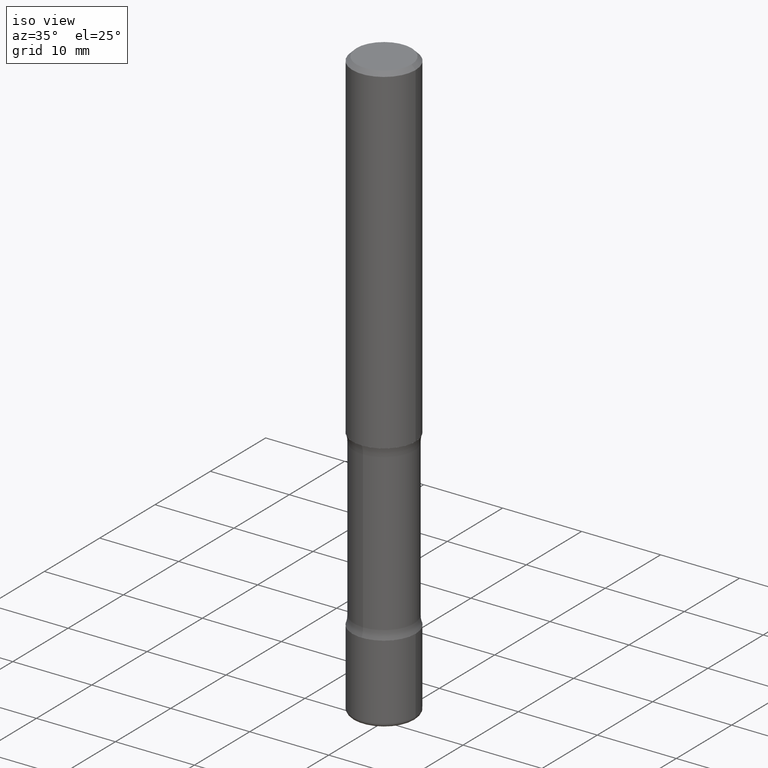
[diagram: clean part render]
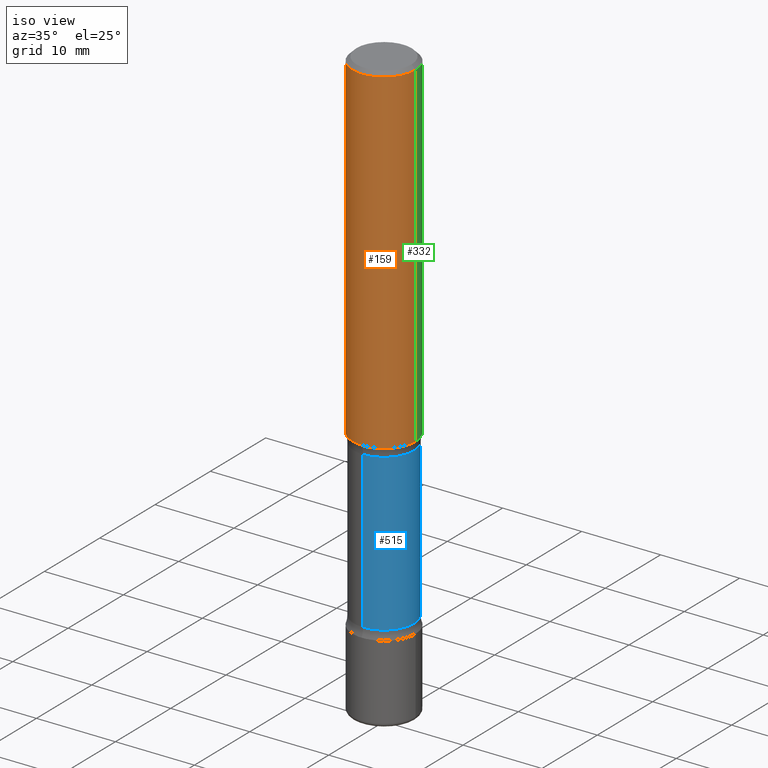
[diagram: same view with three faces highlighted in distinct colors, each labeled with its STEP entity id]
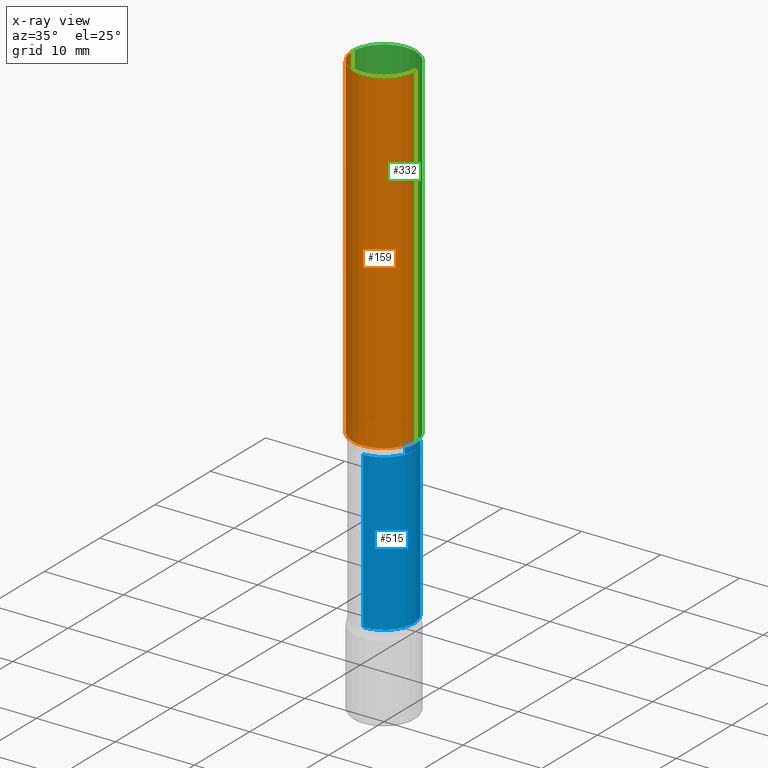
[diagram: x-ray of the same camera — body ghosted, the three highlighted faces saturated]
A machine part, iso view with three faces highlighted in distinct colors.
The next image is the same camera in x-ray (body ghosted, the three faces saturated) — at least one of them is partly hidden behind the body in this view.
Their STEP definitions:

[orange] entity #159 — the highlighted cylindrical surface (partial cylindrical patch) has radius 4.0005 mm, axis along (-0, 0, 1).
#5 = EDGE_CURVE ( 'NONE', #554, #484, #64, .T. ) ;
#7 = VERTEX_POINT ( 'NONE', #22 ) ;
#22 = CARTESIAN_POINT ( 'NONE',  ( -0.1575000000000001676, -1.871348957896993578E-15, -1.692999999999999616 ) ) ;
#27 = CARTESIAN_POINT ( 'NONE',  ( -0.1575000000000000844, 1.119104808822158392E-15, -7.747322767151481189E-30 ) ) ;
#30 = CARTESIAN_POINT ( 'NONE',  ( 0.000000000000000000, 0.000000000000000000, 0.000000000000000000 ) ) ;
#62 = CARTESIAN_POINT ( 'NONE',  ( 0.1575000000000000844, -1.099816621735587677E-15, 7.679978421878603638E-30 ) ) ;
#64 = LINE ( 'NONE', #62, #121 ) ;
#69 = CARTESIAN_POINT ( 'NONE',  ( 0.1575000000000001676, -7.010894528397032856E-15, -1.692999999999999616 ) ) ;
#70 = DIRECTION ( 'NONE',  ( 1.000000000000000000, -6.982962677686265922E-15, 0.000000000000000000 ) ) ;
#105 = CYLINDRICAL_SURFACE ( 'NONE', #418, 0.1575000000000000844 ) ;
#121 = VECTOR ( 'NONE', #176, 39.37007874015748143 ) ;
#146 = ORIENTED_EDGE ( 'NONE', *, *, #227, .T. ) ;
#152 = DIRECTION ( 'NONE',  ( 1.000000000000000000, -6.982962677686267499E-15, 4.876176775795936353E-29 ) ) ;
#159 = ADVANCED_FACE ( 'NONE', ( #421 ), #105, .T. ) ;
#176 = DIRECTION ( 'NONE',  ( -2.445468806185136877E-29, 3.491481338843145188E-15, 1.000000000000000000 ) ) ;
#185 = EDGE_CURVE ( 'NONE', #7, #302, #250, .T. ) ;
#227 = EDGE_CURVE ( 'NONE', #7, #554, #446, .T. ) ;
#241 = CIRCLE ( 'NONE', #552, 0.1575000000000000011 ) ;
#250 = LINE ( 'NONE', #27, #408 ) ;
#300 = AXIS2_PLACEMENT_3D ( 'NONE', #308, #438, #490 ) ;
#302 = VERTEX_POINT ( 'NONE', #527 ) ;
#308 = CARTESIAN_POINT ( 'NONE',  ( 4.140178688871434900E-29, -5.911077906661444587E-15, -1.692999999999999616 ) ) ;
#316 = DIRECTION ( 'NONE',  ( -2.445468806185136597E-29, 3.491481338843145583E-15, 1.000000000000000000 ) ) ;
#356 = EDGE_LOOP ( 'NONE', ( #411, #146, #439, #452 ) ) ;
#384 = CARTESIAN_POINT ( 'NONE',  ( 0.1575000000000000011, -1.150358061425879275E-15, -0.02000000000000003511 ) ) ;
#408 = VECTOR ( 'NONE', #517, 39.37007874015748143 ) ;
#411 = ORIENTED_EDGE ( 'NONE', *, *, #185, .F. ) ;
#417 = EDGE_CURVE ( 'NONE', #302, #484, #241, .T. ) ;
#418 = AXIS2_PLACEMENT_3D ( 'NONE', #30, #551, #152 ) ;
#421 = FACE_OUTER_BOUND ( 'NONE', #356, .T. ) ;
#438 = DIRECTION ( 'NONE',  ( -2.445468806185136597E-29, 3.491481338843145583E-15, 1.000000000000000000 ) ) ;
#439 = ORIENTED_EDGE ( 'NONE', *, *, #5, .T. ) ;
#446 = CIRCLE ( 'NONE', #300, 0.1575000000000001676 ) ;
#452 = ORIENTED_EDGE ( 'NONE', *, *, #417, .F. ) ;
#484 = VERTEX_POINT ( 'NONE', #384 ) ;
#490 = DIRECTION ( 'NONE',  ( 1.000000000000000000, -6.982962677686267499E-15, 0.000000000000000000 ) ) ;
#517 = DIRECTION ( 'NONE',  ( -2.445468806185136877E-29, 3.491481338843145188E-15, 1.000000000000000000 ) ) ;
#527 = CARTESIAN_POINT ( 'NONE',  ( -0.1575000000000000011, 1.029986994958723985E-15, -0.02000000000000003511 ) ) ;
#539 = CARTESIAN_POINT ( 'NONE',  ( 4.890937612370281041E-31, -6.982962677686302702E-17, -0.02000000000000003511 ) ) ;
#551 = DIRECTION ( 'NONE',  ( -2.445468806185136597E-29, 3.491481338843145583E-15, 1.000000000000000000 ) ) ;
#552 = AXIS2_PLACEMENT_3D ( 'NONE', #539, #316, #70 ) ;
#554 = VERTEX_POINT ( 'NONE', #69 ) ;

[blue] entity #515 — the highlighted cylindrical surface (partial cylindrical patch) has radius 3.7973 mm, axis along (0, -0, -1).
#13 = CARTESIAN_POINT ( 'NONE',  ( 4.702483345758239850E-29, -5.413541035302621061E-15, -1.737000000000000099 ) ) ;
#14 = CARTESIAN_POINT ( 'NONE',  ( 6.174935022236070014E-29, -8.746573565571573705E-15, -2.515099999999998559 ) ) ;
#17 = AXIS2_PLACEMENT_3D ( 'NONE', #14, #269, #496 ) ;
#25 = CIRCLE ( 'NONE', #17, 0.1494999999999999940 ) ;
#32 = LINE ( 'NONE', #379, #36 ) ;
#36 = VECTOR ( 'NONE', #278, 39.37007874015748143 ) ;
#41 = FACE_OUTER_BOUND ( 'NONE', #296, .T. ) ;
#53 = CARTESIAN_POINT ( 'NONE',  ( 1.043952920314158531E-15, 0.1494999999999912510, -2.515099999999999003 ) ) ;
#107 = EDGE_CURVE ( 'NONE', #457, #253, #25, .T. ) ;
#114 = EDGE_CURVE ( 'NONE', #162, #457, #406, .T. ) ;
#162 = VERTEX_POINT ( 'NONE', #202 ) ;
#202 = CARTESIAN_POINT ( 'NONE',  ( 1.043952920314138809E-15, 0.1494999999999938878, -1.737000000000000544 ) ) ;
#207 = DIRECTION ( 'NONE',  ( 6.982962677686265133E-15, 1.000000000000000000, -3.654646145370260778E-15 ) ) ;
#208 = VECTOR ( 'NONE', #538, 39.37007874015748143 ) ;
#213 = VERTEX_POINT ( 'NONE', #256 ) ;
#218 = CARTESIAN_POINT ( 'NONE',  ( 7.003224572158122372E-29, -1.062148468046519830E-14, -2.952799999999999869 ) ) ;
#221 = CIRCLE ( 'NONE', #502, 0.1494999999999993001 ) ;
#253 = VERTEX_POINT ( 'NONE', #532 ) ;
#256 = CARTESIAN_POINT ( 'NONE',  ( -1.053086442657879041E-15, -0.1495000000000047125, -1.736999999999999433 ) ) ;
#260 = CYLINDRICAL_SURFACE ( 'NONE', #434, 0.1494999999999996332 ) ;
#267 = ORIENTED_EDGE ( 'NONE', *, *, #357, .T. ) ;
#269 = DIRECTION ( 'NONE',  ( 1.892368174370687992E-29, -4.283552924134379994E-15, -1.000000000000000000 ) ) ;
#278 = DIRECTION ( 'NONE',  ( 1.892368174370687992E-29, -4.283552924134379994E-15, -1.000000000000000000 ) ) ;
#291 = ORIENTED_EDGE ( 'NONE', *, *, #114, .F. ) ;
#296 = EDGE_LOOP ( 'NONE', ( #267, #368, #444, #291 ) ) ;
#297 = DIRECTION ( 'NONE',  ( 1.892368174370687992E-29, -4.283552924134379994E-15, -1.000000000000000000 ) ) ;
#357 = EDGE_CURVE ( 'NONE', #162, #213, #221, .T. ) ;
#363 = DIRECTION ( 'NONE',  ( 1.892368174370687992E-29, -4.283552924134379994E-15, -1.000000000000000000 ) ) ;
#368 = ORIENTED_EDGE ( 'NONE', *, *, #553, .T. ) ;
#379 = CARTESIAN_POINT ( 'NONE',  ( -1.025644450666771294E-15, -0.1495000000000102358, -2.952799999999998981 ) ) ;
#406 = LINE ( 'NONE', #415, #208 ) ;
#415 = CARTESIAN_POINT ( 'NONE',  ( 1.043952920314164053E-15, 0.1494999999999890028, -2.952800000000000313 ) ) ;
#434 = AXIS2_PLACEMENT_3D ( 'NONE', #218, #297, #207 ) ;
#444 = ORIENTED_EDGE ( 'NONE', *, *, #107, .F. ) ;
#457 = VERTEX_POINT ( 'NONE', #53 ) ;
#479 = DIRECTION ( 'NONE',  ( 6.982962677686264344E-15, 1.000000000000000000, -3.654646145370268667E-15 ) ) ;
#496 = DIRECTION ( 'NONE',  ( 6.982962677686265133E-15, 1.000000000000000000, -3.654646145370252101E-15 ) ) ;
#502 = AXIS2_PLACEMENT_3D ( 'NONE', #13, #363, #479 ) ;
#515 = ADVANCED_FACE ( 'NONE', ( #41 ), #260, .T. ) ;
#532 = CARTESIAN_POINT ( 'NONE',  ( -1.053086442657868983E-15, -0.1495000000000087370, -2.515099999999998115 ) ) ;
#538 = DIRECTION ( 'NONE',  ( 1.892368174370687992E-29, -4.283552924134379994E-15, -1.000000000000000000 ) ) ;
#553 = EDGE_CURVE ( 'NONE', #213, #253, #32, .T. ) ;

[green] entity #332 — the highlighted cylindrical surface (partial cylindrical patch) has radius 4.0005 mm, axis along (-0, 0, 1).
#5 = EDGE_CURVE ( 'NONE', #554, #484, #64, .T. ) ;
#7 = VERTEX_POINT ( 'NONE', #22 ) ;
#22 = CARTESIAN_POINT ( 'NONE',  ( -0.1575000000000001676, -1.871348957896993578E-15, -1.692999999999999616 ) ) ;
#27 = CARTESIAN_POINT ( 'NONE',  ( -0.1575000000000000844, 1.119104808822158392E-15, -7.747322767151481189E-30 ) ) ;
#46 = EDGE_CURVE ( 'NONE', #484, #302, #325, .T. ) ;
#54 = AXIS2_PLACEMENT_3D ( 'NONE', #211, #443, #123 ) ;
#59 = CARTESIAN_POINT ( 'NONE',  ( 4.890937612370281041E-31, -6.982962677686302702E-17, -0.02000000000000003511 ) ) ;
#62 = CARTESIAN_POINT ( 'NONE',  ( 0.1575000000000000844, -1.099816621735587677E-15, 7.679978421878603638E-30 ) ) ;
#63 = ORIENTED_EDGE ( 'NONE', *, *, #83, .T. ) ;
#64 = LINE ( 'NONE', #62, #121 ) ;
#69 = CARTESIAN_POINT ( 'NONE',  ( 0.1575000000000001676, -7.010894528397032856E-15, -1.692999999999999616 ) ) ;
#83 = EDGE_CURVE ( 'NONE', #554, #7, #501, .T. ) ;
#89 = FACE_OUTER_BOUND ( 'NONE', #116, .T. ) ;
#99 = DIRECTION ( 'NONE',  ( -2.445468806185136597E-29, 3.491481338843145583E-15, 1.000000000000000000 ) ) ;
#116 = EDGE_LOOP ( 'NONE', ( #63, #435, #407, #311 ) ) ;
#121 = VECTOR ( 'NONE', #176, 39.37007874015748143 ) ;
#123 = DIRECTION ( 'NONE',  ( 1.000000000000000000, -6.982962677686267499E-15, 4.876176775795936353E-29 ) ) ;
#176 = DIRECTION ( 'NONE',  ( -2.445468806185136877E-29, 3.491481338843145188E-15, 1.000000000000000000 ) ) ;
#179 = DIRECTION ( 'NONE',  ( -2.445468806185136597E-29, 3.491481338843145583E-15, 1.000000000000000000 ) ) ;
#185 = EDGE_CURVE ( 'NONE', #7, #302, #250, .T. ) ;
#188 = AXIS2_PLACEMENT_3D ( 'NONE', #59, #179, #231 ) ;
#211 = CARTESIAN_POINT ( 'NONE',  ( 0.000000000000000000, 0.000000000000000000, 0.000000000000000000 ) ) ;
#231 = DIRECTION ( 'NONE',  ( 1.000000000000000000, -6.982962677686265922E-15, 0.000000000000000000 ) ) ;
#246 = AXIS2_PLACEMENT_3D ( 'NONE', #329, #99, #275 ) ;
#250 = LINE ( 'NONE', #27, #408 ) ;
#275 = DIRECTION ( 'NONE',  ( 1.000000000000000000, -6.982962677686267499E-15, 0.000000000000000000 ) ) ;
#302 = VERTEX_POINT ( 'NONE', #527 ) ;
#311 = ORIENTED_EDGE ( 'NONE', *, *, #5, .F. ) ;
#325 = CIRCLE ( 'NONE', #188, 0.1575000000000000011 ) ;
#329 = CARTESIAN_POINT ( 'NONE',  ( 4.140178688871434900E-29, -5.911077906661444587E-15, -1.692999999999999616 ) ) ;
#332 = ADVANCED_FACE ( 'NONE', ( #89 ), #353, .T. ) ;
#353 = CYLINDRICAL_SURFACE ( 'NONE', #54, 0.1575000000000000844 ) ;
#384 = CARTESIAN_POINT ( 'NONE',  ( 0.1575000000000000011, -1.150358061425879275E-15, -0.02000000000000003511 ) ) ;
#407 = ORIENTED_EDGE ( 'NONE', *, *, #46, .F. ) ;
#408 = VECTOR ( 'NONE', #517, 39.37007874015748143 ) ;
#435 = ORIENTED_EDGE ( 'NONE', *, *, #185, .T. ) ;
#443 = DIRECTION ( 'NONE',  ( -2.445468806185136597E-29, 3.491481338843145583E-15, 1.000000000000000000 ) ) ;
#484 = VERTEX_POINT ( 'NONE', #384 ) ;
#501 = CIRCLE ( 'NONE', #246, 0.1575000000000001676 ) ;
#517 = DIRECTION ( 'NONE',  ( -2.445468806185136877E-29, 3.491481338843145188E-15, 1.000000000000000000 ) ) ;
#527 = CARTESIAN_POINT ( 'NONE',  ( -0.1575000000000000011, 1.029986994958723985E-15, -0.02000000000000003511 ) ) ;
#554 = VERTEX_POINT ( 'NONE', #69 ) ;